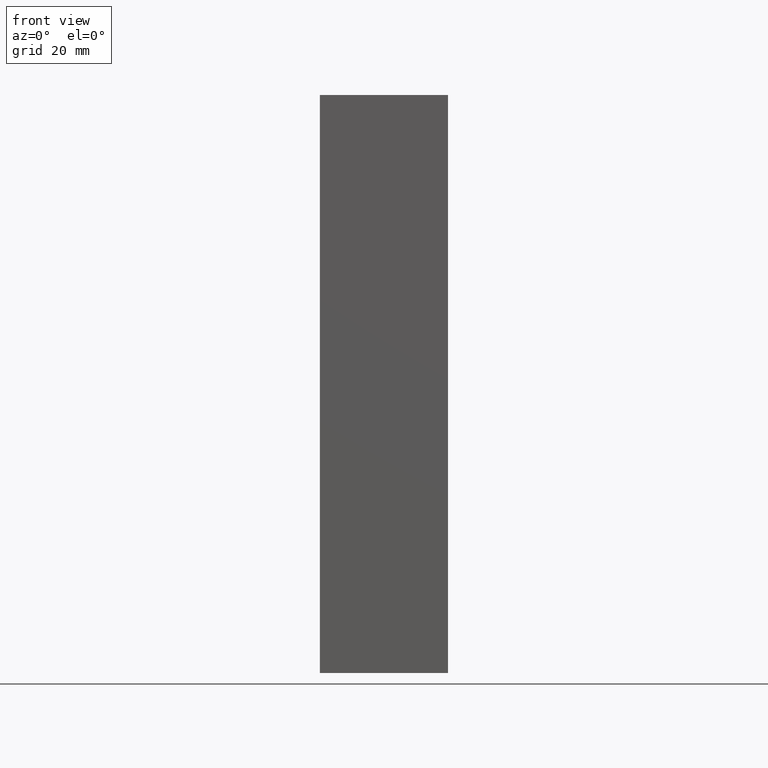
[diagram: clean part render]
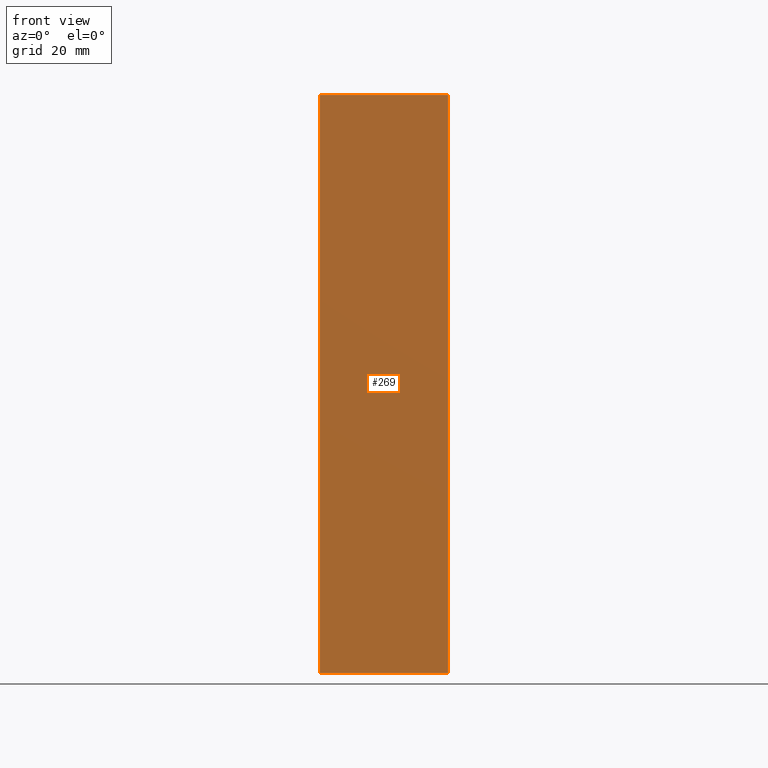
[diagram: same view with one face highlighted and labeled with its STEP entity id]
A machine part, front view. The second image highlights one B-rep face of the part: STEP entity #269.
In plain terms, the highlighted planar face has unit normal (0, -1, 0).
Its self-contained STEP definition (entity closure, byte-faithful):
#14=DIRECTION('',(1.E0,0.E0,0.E0));
#15=VECTOR('',#14,8.8E-1);
#16=CARTESIAN_POINT('',(-4.4E-1,-1.475E0,0.E0));
#17=LINE('',#16,#15);
#62=DIRECTION('',(1.E0,0.E0,0.E0));
#63=VECTOR('',#62,8.8E-1);
#64=CARTESIAN_POINT('',(-4.4E-1,-1.475E0,-3.97E0));
#65=LINE('',#64,#63);
#86=DIRECTION('',(0.E0,0.E0,-1.E0));
#87=VECTOR('',#86,3.97E0);
#88=CARTESIAN_POINT('',(4.4E-1,-1.475E0,0.E0));
#89=LINE('',#88,#87);
#90=DIRECTION('',(0.E0,0.E0,-1.E0));
#91=VECTOR('',#90,3.97E0);
#92=CARTESIAN_POINT('',(-4.4E-1,-1.475E0,0.E0));
#93=LINE('',#92,#91);
#99=CARTESIAN_POINT('',(-4.4E-1,-1.475E0,0.E0));
#101=VERTEX_POINT('',#99);
#102=CARTESIAN_POINT('',(4.4E-1,-1.475E0,0.E0));
#103=VERTEX_POINT('',#102);
#106=CARTESIAN_POINT('',(-4.4E-1,-1.475E0,-3.97E0));
#107=CARTESIAN_POINT('',(4.4E-1,-1.475E0,-3.97E0));
#108=VERTEX_POINT('',#106);
#109=VERTEX_POINT('',#107);
#258=CARTESIAN_POINT('',(-4.4E-1,-1.475E0,0.E0));
#259=DIRECTION('',(0.E0,-1.E0,0.E0));
#260=DIRECTION('',(1.E0,0.E0,0.E0));
#261=AXIS2_PLACEMENT_3D('',#258,#259,#260);
#262=PLANE('',#261);
#263=ORIENTED_EDGE('',*,*,#141,.T.);
#264=ORIENTED_EDGE('',*,*,#249,.T.);
#265=ORIENTED_EDGE('',*,*,#232,.F.);
#266=ORIENTED_EDGE('',*,*,#158,.F.);
#267=EDGE_LOOP('',(#263,#264,#265,#266));
#268=FACE_OUTER_BOUND('',#267,.F.);
#269=ADVANCED_FACE('',(#268),#262,.T.);
#141=EDGE_CURVE('',#101,#103,#17,.T.);
#158=EDGE_CURVE('',#101,#108,#93,.T.);
#232=EDGE_CURVE('',#108,#109,#65,.T.);
#249=EDGE_CURVE('',#103,#109,#89,.T.);